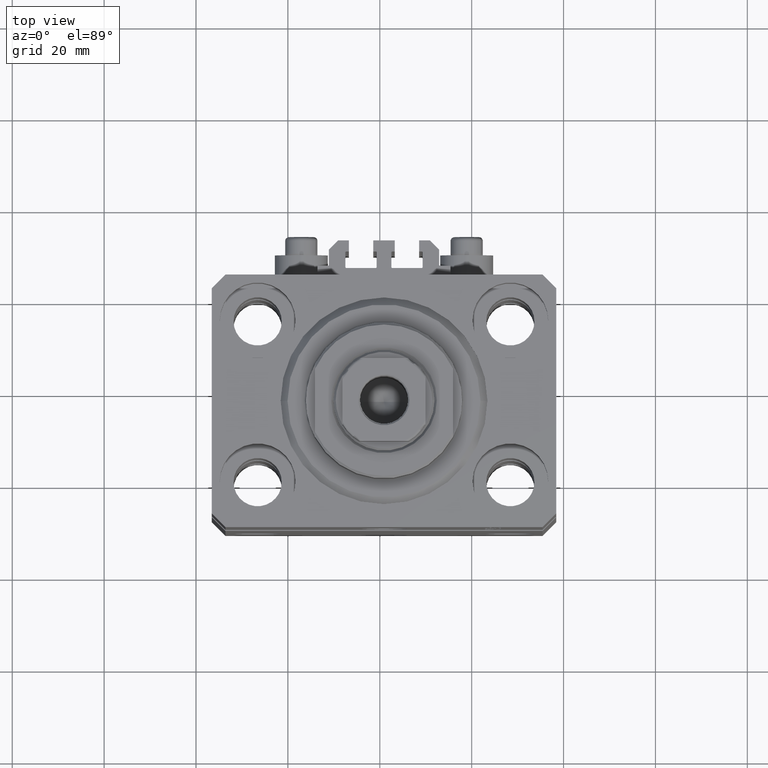
[diagram: clean part render]
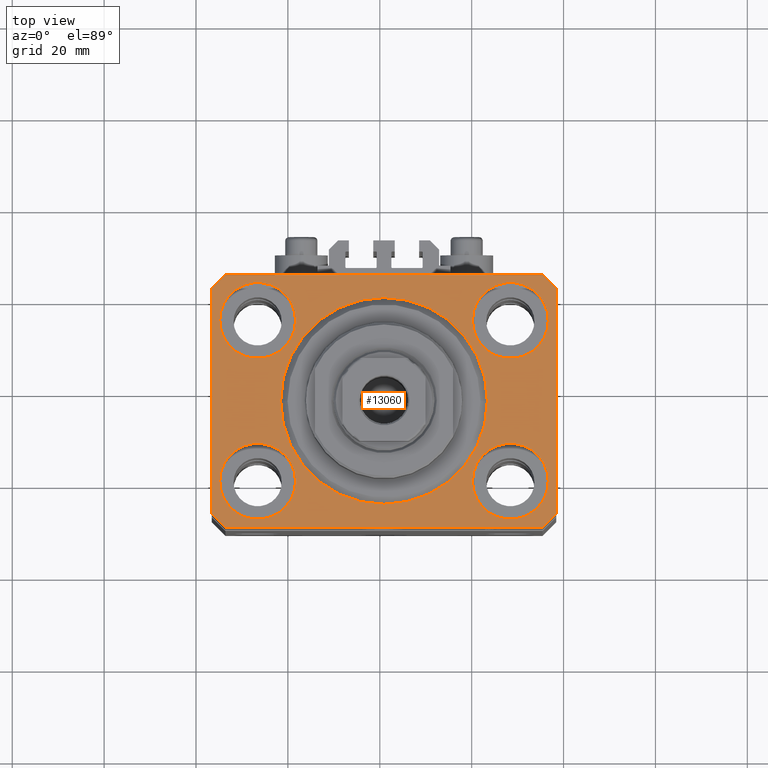
[diagram: same view with one face highlighted and labeled with its STEP entity id]
A machine part, top view. The second image highlights one B-rep face of the part: STEP entity #13060.
In plain terms, the highlighted planar face has unit normal (0, 0, 1).
Its self-contained STEP definition (entity closure, byte-faithful):
#600 = CIRCLE ( 'NONE', #34991, 8.250000000000000000 ) ;
#746 = FACE_BOUND ( 'NONE', #3302, .T. ) ;
#975 = CARTESIAN_POINT ( 'NONE',  ( -37.49999999999999289, -24.50000000000000000, 0.000000000000000000 ) ) ;
#1109 = ORIENTED_EDGE ( 'NONE', *, *, #40938, .F. ) ;
#1810 = ORIENTED_EDGE ( 'NONE', *, *, #34346, .F. ) ;
#2127 = CARTESIAN_POINT ( 'NONE',  ( 19.25000000000000000, -17.50000000000000000, 0.000000000000000000 ) ) ;
#2505 = ORIENTED_EDGE ( 'NONE', *, *, #32570, .F. ) ;
#2707 = CIRCLE ( 'NONE', #14165, 8.250000000000000000 ) ;
#2873 = EDGE_CURVE ( 'NONE', #22733, #40427, #6994, .T. ) ;
#3302 = EDGE_LOOP ( 'NONE', ( #42284, #6914 ) ) ;
#3400 = CARTESIAN_POINT ( 'NONE',  ( -37.49999999999999289, 24.50000000000000000, 0.000000000000000000 ) ) ;
#3821 = CARTESIAN_POINT ( 'NONE',  ( -34.49999999999999289, 27.50000000000000000, 0.000000000000000000 ) ) ;
#4286 = EDGE_CURVE ( 'NONE', #9284, #46067, #7579, .T. ) ;
#4435 = DIRECTION ( 'NONE',  ( 0.000000000000000000, 0.000000000000000000, 1.000000000000000000 ) ) ;
#4608 = EDGE_CURVE ( 'NONE', #19808, #29471, #35667, .T. ) ;
#4886 = LINE ( 'NONE', #8989, #46719 ) ;
#5475 = CIRCLE ( 'NONE', #38360, 8.249999999999992895 ) ;
#5658 = CARTESIAN_POINT ( 'NONE',  ( 27.50000000000000355, -17.50000000000000000, 0.000000000000000000 ) ) ;
#5737 = DIRECTION ( 'NONE',  ( 0.000000000000000000, 0.000000000000000000, 1.000000000000000000 ) ) ;
#6664 = EDGE_CURVE ( 'NONE', #29471, #22733, #42055, .T. ) ;
#6800 = DIRECTION ( 'NONE',  ( 0.000000000000000000, 0.000000000000000000, 1.000000000000000000 ) ) ;
#6914 = ORIENTED_EDGE ( 'NONE', *, *, #7764, .F. ) ;
#6994 = LINE ( 'NONE', #11051, #46495 ) ;
#7217 = FACE_BOUND ( 'NONE', #32450, .T. ) ;
#7433 = EDGE_CURVE ( 'NONE', #19140, #37223, #44339, .T. ) ;
#7579 = CIRCLE ( 'NONE', #14458, 8.250000000000000000 ) ;
#7604 = DIRECTION ( 'NONE',  ( 1.000000000000000000, 0.000000000000000000, 0.000000000000000000 ) ) ;
#7764 = EDGE_CURVE ( 'NONE', #44580, #46612, #46666, .T. ) ;
#7929 = EDGE_LOOP ( 'NONE', ( #12863, #13625 ) ) ;
#8269 = LINE ( 'NONE', #27405, #30339 ) ;
#8378 = ORIENTED_EDGE ( 'NONE', *, *, #16684, .T. ) ;
#8989 = CARTESIAN_POINT ( 'NONE',  ( 34.49999999999999289, -27.49999999999999645, 0.000000000000000000 ) ) ;
#9168 = DIRECTION ( 'NONE',  ( 0.000000000000000000, 0.000000000000000000, 1.000000000000000000 ) ) ;
#9222 = DIRECTION ( 'NONE',  ( -0.7071067811865356934, 0.7071067811865594521, 0.000000000000000000 ) ) ;
#9284 = VERTEX_POINT ( 'NONE', #46824 ) ;
#9507 = ORIENTED_EDGE ( 'NONE', *, *, #7433, .F. ) ;
#9516 = ORIENTED_EDGE ( 'NONE', *, *, #45706, .T. ) ;
#9697 = CARTESIAN_POINT ( 'NONE',  ( 34.50000000000056843, 27.50000000000000000, 0.000000000000000000 ) ) ;
#9820 = VERTEX_POINT ( 'NONE', #2127 ) ;
#10588 = CARTESIAN_POINT ( 'NONE',  ( 37.49999999999999289, -24.50000000000000000, 0.000000000000000000 ) ) ;
#10674 = DIRECTION ( 'NONE',  ( 0.000000000000000000, 0.000000000000000000, 1.000000000000000000 ) ) ;
#10811 = FACE_BOUND ( 'NONE', #31051, .T. ) ;
#11051 = CARTESIAN_POINT ( 'NONE',  ( -34.49999999999998579, -27.49999999999999645, 0.000000000000000000 ) ) ;
#11403 = CARTESIAN_POINT ( 'NONE',  ( 27.49999999999999645, 17.50000000000001066, 0.000000000000000000 ) ) ;
#11438 = VERTEX_POINT ( 'NONE', #45763 ) ;
#11537 = EDGE_CURVE ( 'NONE', #40427, #13672, #4886, .T. ) ;
#11983 = ORIENTED_EDGE ( 'NONE', *, *, #2873, .T. ) ;
#12357 = EDGE_CURVE ( 'NONE', #16876, #12376, #5475, .T. ) ;
#12376 = VERTEX_POINT ( 'NONE', #22876 ) ;
#12739 = CARTESIAN_POINT ( 'NONE',  ( -27.50000000000000355, -17.50000000000000000, 0.000000000000000000 ) ) ;
#12863 = ORIENTED_EDGE ( 'NONE', *, *, #4286, .F. ) ;
#13060 = ADVANCED_FACE ( 'NONE', ( #746, #10811, #7217, #47199, #14394, #43612 ), #40261, .T. ) ;
#13303 = DIRECTION ( 'NONE',  ( 0.7071067811865483499, -0.7071067811865466846, 0.000000000000000000 ) ) ;
#13521 = VECTOR ( 'NONE', #32558, 1000.000000000000000 ) ;
#13625 = ORIENTED_EDGE ( 'NONE', *, *, #30138, .F. ) ;
#13672 = VERTEX_POINT ( 'NONE', #10588 ) ;
#13898 = LINE ( 'NONE', #3821, #13521 ) ;
#14165 = AXIS2_PLACEMENT_3D ( 'NONE', #18062, #40099, #44161 ) ;
#14242 = CIRCLE ( 'NONE', #47123, 8.249999999999992895 ) ;
#14394 = FACE_BOUND ( 'NONE', #45656, .T. ) ;
#14440 = CARTESIAN_POINT ( 'NONE',  ( 27.49999999999999645, 17.50000000000001066, 0.000000000000000000 ) ) ;
#14458 = AXIS2_PLACEMENT_3D ( 'NONE', #25999, #45134, #46072 ) ;
#14965 = DIRECTION ( 'NONE',  ( 1.000000000000000000, 0.000000000000000000, 0.000000000000000000 ) ) ;
#15080 = VERTEX_POINT ( 'NONE', #34183 ) ;
#15475 = CARTESIAN_POINT ( 'NONE',  ( -22.50000000000000355, 2.755455298081545172E-15, 0.000000000000000000 ) ) ;
#15561 = VERTEX_POINT ( 'NONE', #9697 ) ;
#15934 = CARTESIAN_POINT ( 'NONE',  ( -34.49999999999998579, -27.49999999999999645, 0.000000000000000000 ) ) ;
#16664 = CIRCLE ( 'NONE', #39637, 8.250000000000000000 ) ;
#16684 = EDGE_CURVE ( 'NONE', #13672, #11438, #40560, .T. ) ;
#16876 = VERTEX_POINT ( 'NONE', #43138 ) ;
#18062 = CARTESIAN_POINT ( 'NONE',  ( -27.50000000000000355, -17.50000000000000000, 0.000000000000000000 ) ) ;
#18235 = VECTOR ( 'NONE', #36618, 1000.000000000000000 ) ;
#19041 = DIRECTION ( 'NONE',  ( 1.000000000000000000, 0.000000000000000000, 0.000000000000000000 ) ) ;
#19074 = ORIENTED_EDGE ( 'NONE', *, *, #6664, .T. ) ;
#19140 = VERTEX_POINT ( 'NONE', #15475 ) ;
#19143 = CARTESIAN_POINT ( 'NONE',  ( 34.49999999999999289, -27.49999999999999645, 0.000000000000000000 ) ) ;
#19793 = DIRECTION ( 'NONE',  ( 0.000000000000000000, 0.000000000000000000, 1.000000000000000000 ) ) ;
#19808 = VERTEX_POINT ( 'NONE', #3400 ) ;
#21295 = DIRECTION ( 'NONE',  ( 1.000000000000000000, 0.000000000000000000, 0.000000000000000000 ) ) ;
#21398 = DIRECTION ( 'NONE',  ( 1.000000000000000000, 0.000000000000000000, 0.000000000000000000 ) ) ;
#21404 = VECTOR ( 'NONE', #13303, 1000.000000000000000 ) ;
#21414 = ORIENTED_EDGE ( 'NONE', *, *, #12357, .F. ) ;
#21561 = AXIS2_PLACEMENT_3D ( 'NONE', #25415, #40022, #26585 ) ;
#22347 = ORIENTED_EDGE ( 'NONE', *, *, #27500, .T. ) ;
#22733 = VERTEX_POINT ( 'NONE', #15934 ) ;
#22876 = CARTESIAN_POINT ( 'NONE',  ( 35.74999999999999289, 17.50000000000001066, 0.000000000000000000 ) ) ;
#23617 = DIRECTION ( 'NONE',  ( 0.000000000000000000, 0.000000000000000000, 1.000000000000000000 ) ) ;
#23634 = VECTOR ( 'NONE', #46678, 1000.000000000000000 ) ;
#23706 = AXIS2_PLACEMENT_3D ( 'NONE', #28869, #10674, #14965 ) ;
#23990 = DIRECTION ( 'NONE',  ( 1.000000000000000000, 0.000000000000000000, 0.000000000000000000 ) ) ;
#24125 = VERTEX_POINT ( 'NONE', #28668 ) ;
#24427 = EDGE_CURVE ( 'NONE', #46612, #44580, #2707, .T. ) ;
#24546 = CARTESIAN_POINT ( 'NONE',  ( -35.75000000000000711, -17.50000000000000000, 0.000000000000000000 ) ) ;
#24596 = ORIENTED_EDGE ( 'NONE', *, *, #31716, .T. ) ;
#25185 = AXIS2_PLACEMENT_3D ( 'NONE', #5658, #19793, #27686 ) ;
#25351 = EDGE_LOOP ( 'NONE', ( #24596, #22347, #39627, #19074, #11983, #34872, #8378, #9516 ) ) ;
#25415 = CARTESIAN_POINT ( 'NONE',  ( 0.000000000000000000, 0.000000000000000000, 0.000000000000000000 ) ) ;
#25597 = LINE ( 'NONE', #33258, #18235 ) ;
#25999 = CARTESIAN_POINT ( 'NONE',  ( -27.50000000000000355, 17.50000000000000000, 0.000000000000000000 ) ) ;
#26585 = DIRECTION ( 'NONE',  ( 1.000000000000000000, 0.000000000000000000, -0.000000000000000000 ) ) ;
#27020 = VECTOR ( 'NONE', #41017, 1000.000000000000000 ) ;
#27405 = CARTESIAN_POINT ( 'NONE',  ( 37.50000000000051870, 24.49999999999995381, 0.000000000000000000 ) ) ;
#27500 = EDGE_CURVE ( 'NONE', #15080, #19808, #13898, .T. ) ;
#27686 = DIRECTION ( 'NONE',  ( 1.000000000000000000, 0.000000000000000000, 0.000000000000000000 ) ) ;
#28480 = CARTESIAN_POINT ( 'NONE',  ( 0.000000000000000000, 0.000000000000000000, 0.000000000000000000 ) ) ;
#28668 = CARTESIAN_POINT ( 'NONE',  ( 35.75000000000000711, -17.50000000000000000, 0.000000000000000000 ) ) ;
#28869 = CARTESIAN_POINT ( 'NONE',  ( 0.000000000000000000, 0.000000000000000000, 0.000000000000000000 ) ) ;
#29247 = DIRECTION ( 'NONE',  ( 1.000000000000000000, 0.000000000000000000, 0.000000000000000000 ) ) ;
#29471 = VERTEX_POINT ( 'NONE', #975 ) ;
#30138 = EDGE_CURVE ( 'NONE', #46067, #9284, #600, .T. ) ;
#30339 = VECTOR ( 'NONE', #9222, 1000.000000000000114 ) ;
#30768 = DIRECTION ( 'NONE',  ( 0.7071067811865474617, 0.7071067811865474617, 0.000000000000000000 ) ) ;
#30796 = CARTESIAN_POINT ( 'NONE',  ( -27.50000000000000355, 17.50000000000000000, 0.000000000000000000 ) ) ;
#31034 = DIRECTION ( 'NONE',  ( 1.000000000000000000, 0.000000000000000000, 0.000000000000000000 ) ) ;
#31051 = EDGE_LOOP ( 'NONE', ( #2505, #35408 ) ) ;
#31077 = EDGE_CURVE ( 'NONE', #9820, #24125, #16664, .T. ) ;
#31716 = EDGE_CURVE ( 'NONE', #15561, #15080, #25597, .T. ) ;
#31825 = CARTESIAN_POINT ( 'NONE',  ( 22.50000000000000355, 0.000000000000000000, 0.000000000000000000 ) ) ;
#32078 = CARTESIAN_POINT ( 'NONE',  ( -37.49999999999999289, 24.50000000000000000, 0.000000000000000000 ) ) ;
#32450 = EDGE_LOOP ( 'NONE', ( #1109, #21414 ) ) ;
#32558 = DIRECTION ( 'NONE',  ( -0.7071067811865471286, -0.7071067811865479058, 0.000000000000000000 ) ) ;
#32570 = EDGE_CURVE ( 'NONE', #24125, #9820, #43501, .T. ) ;
#32892 = CARTESIAN_POINT ( 'NONE',  ( -19.25000000000000355, -17.50000000000000000, 0.000000000000000000 ) ) ;
#33258 = CARTESIAN_POINT ( 'NONE',  ( 34.50000000000056843, 27.50000000000000000, 0.000000000000000000 ) ) ;
#34183 = CARTESIAN_POINT ( 'NONE',  ( -34.49999999999999289, 27.50000000000000000, 0.000000000000000000 ) ) ;
#34346 = EDGE_CURVE ( 'NONE', #37223, #19140, #38216, .T. ) ;
#34872 = ORIENTED_EDGE ( 'NONE', *, *, #11537, .T. ) ;
#34991 = AXIS2_PLACEMENT_3D ( 'NONE', #30796, #23617, #31034 ) ;
#35408 = ORIENTED_EDGE ( 'NONE', *, *, #31077, .F. ) ;
#35667 = LINE ( 'NONE', #32078, #23634 ) ;
#36618 = DIRECTION ( 'NONE',  ( -1.000000000000000000, 0.000000000000000000, 0.000000000000000000 ) ) ;
#37223 = VERTEX_POINT ( 'NONE', #31825 ) ;
#38216 = CIRCLE ( 'NONE', #43567, 22.50000000000000355 ) ;
#38360 = AXIS2_PLACEMENT_3D ( 'NONE', #11403, #4435, #19041 ) ;
#38706 = CARTESIAN_POINT ( 'NONE',  ( -37.49999999999999289, -24.50000000000000000, 0.000000000000000000 ) ) ;
#39627 = ORIENTED_EDGE ( 'NONE', *, *, #4608, .T. ) ;
#39637 = AXIS2_PLACEMENT_3D ( 'NONE', #44449, #40396, #7604 ) ;
#40022 = DIRECTION ( 'NONE',  ( 0.000000000000000000, 0.000000000000000000, 1.000000000000000000 ) ) ;
#40099 = DIRECTION ( 'NONE',  ( 0.000000000000000000, 0.000000000000000000, 1.000000000000000000 ) ) ;
#40261 = PLANE ( 'NONE',  #21561 ) ;
#40396 = DIRECTION ( 'NONE',  ( 0.000000000000000000, 0.000000000000000000, 1.000000000000000000 ) ) ;
#40427 = VERTEX_POINT ( 'NONE', #19143 ) ;
#40560 = LINE ( 'NONE', #44840, #27020 ) ;
#40938 = EDGE_CURVE ( 'NONE', #12376, #16876, #14242, .T. ) ;
#41017 = DIRECTION ( 'NONE',  ( 1.076236605503979380E-14, 1.000000000000000000, 0.000000000000000000 ) ) ;
#42055 = LINE ( 'NONE', #38706, #21404 ) ;
#42284 = ORIENTED_EDGE ( 'NONE', *, *, #24427, .F. ) ;
#43138 = CARTESIAN_POINT ( 'NONE',  ( 19.25000000000000000, 17.50000000000001066, 0.000000000000000000 ) ) ;
#43501 = CIRCLE ( 'NONE', #25185, 8.250000000000000000 ) ;
#43567 = AXIS2_PLACEMENT_3D ( 'NONE', #28480, #5737, #21295 ) ;
#43612 = FACE_OUTER_BOUND ( 'NONE', #25351, .T. ) ;
#44161 = DIRECTION ( 'NONE',  ( 1.000000000000000000, 0.000000000000000000, 0.000000000000000000 ) ) ;
#44339 = CIRCLE ( 'NONE', #23706, 22.50000000000000355 ) ;
#44449 = CARTESIAN_POINT ( 'NONE',  ( 27.50000000000000355, -17.50000000000000000, 0.000000000000000000 ) ) ;
#44580 = VERTEX_POINT ( 'NONE', #24546 ) ;
#44840 = CARTESIAN_POINT ( 'NONE',  ( 37.49999999999999289, -24.50000000000000000, 0.000000000000000000 ) ) ;
#45134 = DIRECTION ( 'NONE',  ( 0.000000000000000000, 0.000000000000000000, 1.000000000000000000 ) ) ;
#45155 = AXIS2_PLACEMENT_3D ( 'NONE', #12739, #9168, #23990 ) ;
#45656 = EDGE_LOOP ( 'NONE', ( #1810, #9507 ) ) ;
#45706 = EDGE_CURVE ( 'NONE', #11438, #15561, #8269, .T. ) ;
#45763 = CARTESIAN_POINT ( 'NONE',  ( 37.50000000000051870, 24.49999999999995381, 0.000000000000000000 ) ) ;
#46067 = VERTEX_POINT ( 'NONE', #47189 ) ;
#46072 = DIRECTION ( 'NONE',  ( 1.000000000000000000, 0.000000000000000000, 0.000000000000000000 ) ) ;
#46495 = VECTOR ( 'NONE', #29247, 1000.000000000000000 ) ;
#46612 = VERTEX_POINT ( 'NONE', #32892 ) ;
#46666 = CIRCLE ( 'NONE', #45155, 8.250000000000000000 ) ;
#46678 = DIRECTION ( 'NONE',  ( 0.000000000000000000, -1.000000000000000000, 0.000000000000000000 ) ) ;
#46719 = VECTOR ( 'NONE', #30768, 1000.000000000000114 ) ;
#46824 = CARTESIAN_POINT ( 'NONE',  ( -19.25000000000000355, 17.50000000000000000, 0.000000000000000000 ) ) ;
#47123 = AXIS2_PLACEMENT_3D ( 'NONE', #14440, #6800, #21398 ) ;
#47189 = CARTESIAN_POINT ( 'NONE',  ( -35.75000000000000711, 17.50000000000000000, 0.000000000000000000 ) ) ;
#47199 = FACE_BOUND ( 'NONE', #7929, .T. ) ;